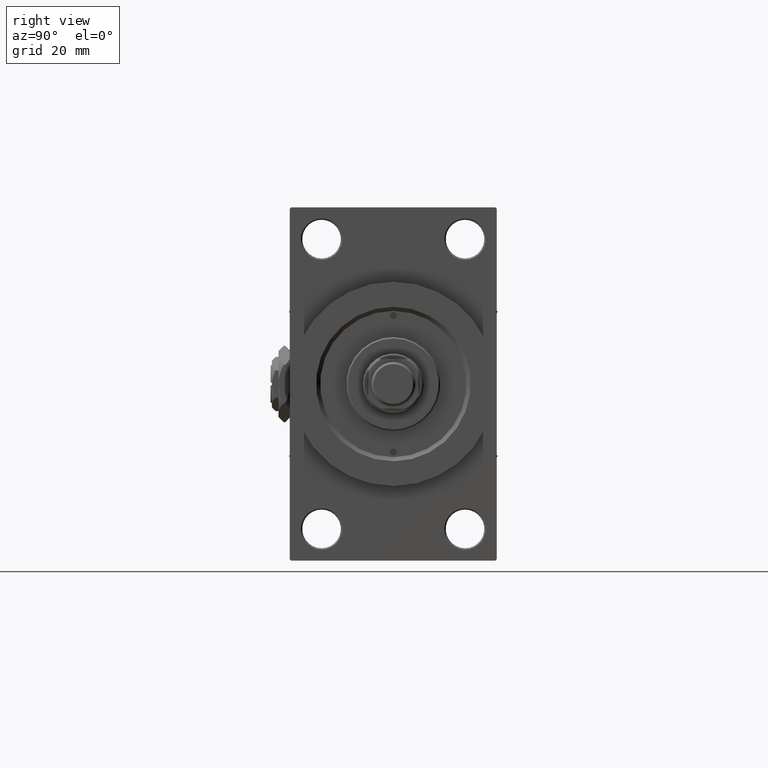
[diagram: clean part render]
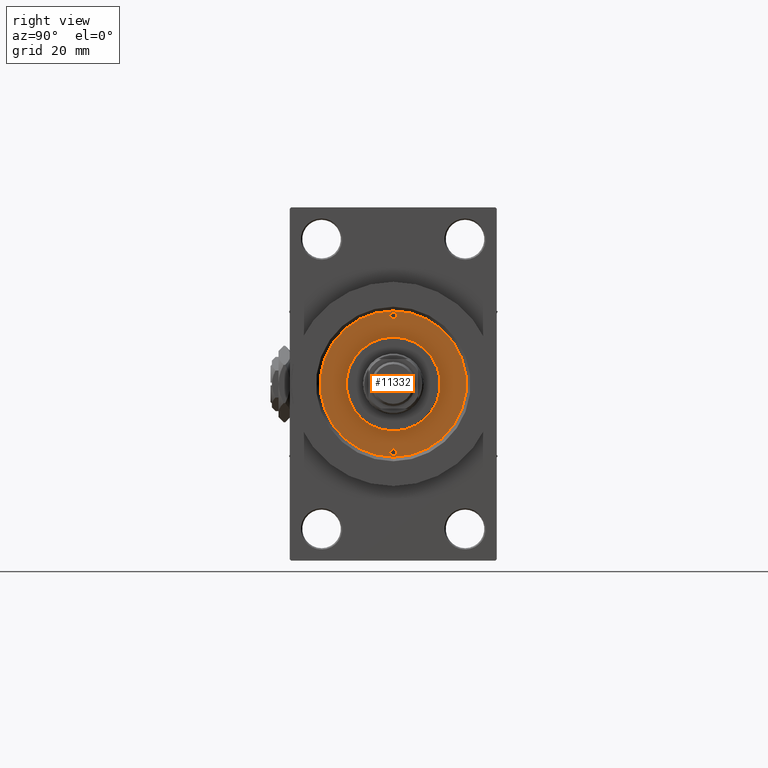
[diagram: same view with one face highlighted and labeled with its STEP entity id]
A machine part, right view. The second image highlights one B-rep face of the part: STEP entity #11332.
In plain terms, the highlighted planar face has unit normal (1, -0, -0).
Its self-contained STEP definition (entity closure, byte-faithful):
#151 = DIRECTION ( 'NONE',  ( 0.000000000000000000, 0.000000000000000000, 1.000000000000000000 ) ) ;
#511 = AXIS2_PLACEMENT_3D ( 'NONE', #33366, #10279, #41410 ) ;
#755 = DIRECTION ( 'NONE',  ( 1.000000000000000000, 0.000000000000000000, 0.000000000000000000 ) ) ;
#1185 = CARTESIAN_POINT ( 'NONE',  ( 24.75000000000000000, 0.000000000000000000, 43.25999999999999801 ) ) ;
#1805 = DIRECTION ( 'NONE',  ( 1.000000000000000000, 0.000000000000000000, 0.000000000000000000 ) ) ;
#2766 = ORIENTED_EDGE ( 'NONE', *, *, #18905, .F. ) ;
#4189 = AXIS2_PLACEMENT_3D ( 'NONE', #1185, #5189, #43558 ) ;
#4529 = VERTEX_POINT ( 'NONE', #7567 ) ;
#5189 = DIRECTION ( 'NONE',  ( -0.000000000000000000, -0.000000000000000000, 1.000000000000000000 ) ) ;
#5830 = ORIENTED_EDGE ( 'NONE', *, *, #45797, .F. ) ;
#5930 = EDGE_LOOP ( 'NONE', ( #6527, #16597 ) ) ;
#6217 = DIRECTION ( 'NONE',  ( 1.000000000000000000, 0.000000000000000000, 0.000000000000000000 ) ) ;
#6281 = ORIENTED_EDGE ( 'NONE', *, *, #8749, .F. ) ;
#6527 = ORIENTED_EDGE ( 'NONE', *, *, #27069, .F. ) ;
#7486 = CIRCLE ( 'NONE', #9853, 1.249999999999997558 ) ;
#7567 = CARTESIAN_POINT ( 'NONE',  ( -23.50000000000000355, 0.000000000000000000, 43.25999999999999801 ) ) ;
#8411 = PLANE ( 'NONE',  #48506 ) ;
#8749 = EDGE_CURVE ( 'NONE', #34991, #49303, #14770, .T. ) ;
#8811 = DIRECTION ( 'NONE',  ( -0.000000000000000000, -0.000000000000000000, 1.000000000000000000 ) ) ;
#9136 = CARTESIAN_POINT ( 'NONE',  ( 0.000000000000000000, 0.000000000000000000, 43.25999999999999801 ) ) ;
#9853 = AXIS2_PLACEMENT_3D ( 'NONE', #46226, #8811, #39426 ) ;
#10279 = DIRECTION ( 'NONE',  ( -0.000000000000000000, -0.000000000000000000, 1.000000000000000000 ) ) ;
#10665 = EDGE_CURVE ( 'NONE', #47299, #31059, #47694, .T. ) ;
#11332 = ADVANCED_FACE ( 'NONE', ( #34748, #41566, #49340, #14954 ), #8411, .T. ) ;
#12140 = CARTESIAN_POINT ( 'NONE',  ( -26.50000000000000355, 0.000000000000000000, 43.25999999999999801 ) ) ;
#12440 = AXIS2_PLACEMENT_3D ( 'NONE', #20635, #35937, #1805 ) ;
#12592 = ORIENTED_EDGE ( 'NONE', *, *, #10665, .T. ) ;
#14320 = CARTESIAN_POINT ( 'NONE',  ( -17.00000000000000000, 0.000000000000000000, 43.25999999999999801 ) ) ;
#14585 = EDGE_CURVE ( 'NONE', #31059, #47299, #35676, .T. ) ;
#14705 = DIRECTION ( 'NONE',  ( 1.000000000000000000, 0.000000000000000000, 0.000000000000000000 ) ) ;
#14770 = CIRCLE ( 'NONE', #17149, 1.249999999999997558 ) ;
#14954 = FACE_OUTER_BOUND ( 'NONE', #23126, .T. ) ;
#14966 = CARTESIAN_POINT ( 'NONE',  ( 0.000000000000000000, 0.000000000000000000, 43.25999999999999801 ) ) ;
#16426 = DIRECTION ( 'NONE',  ( 0.000000000000000000, 0.000000000000000000, 1.000000000000000000 ) ) ;
#16579 = EDGE_CURVE ( 'NONE', #22770, #40186, #36522, .T. ) ;
#16597 = ORIENTED_EDGE ( 'NONE', *, *, #16579, .F. ) ;
#16761 = CARTESIAN_POINT ( 'NONE',  ( 26.00000000000000000, 0.000000000000000000, 43.25999999999999801 ) ) ;
#16916 = CARTESIAN_POINT ( 'NONE',  ( -26.00000000000000000, 1.530808498934188612E-16, 43.25999999999999801 ) ) ;
#17149 = AXIS2_PLACEMENT_3D ( 'NONE', #38638, #19819, #755 ) ;
#18905 = EDGE_CURVE ( 'NONE', #4529, #25005, #30952, .T. ) ;
#19819 = DIRECTION ( 'NONE',  ( -0.000000000000000000, -0.000000000000000000, 1.000000000000000000 ) ) ;
#20332 = CIRCLE ( 'NONE', #48379, 17.00000000000000000 ) ;
#20380 = EDGE_CURVE ( 'NONE', #49303, #34991, #32217, .T. ) ;
#20635 = CARTESIAN_POINT ( 'NONE',  ( 0.000000000000000000, 0.000000000000000000, 43.25999999999999801 ) ) ;
#21629 = CARTESIAN_POINT ( 'NONE',  ( 17.00000000000000000, 2.081899558550500280E-15, 43.25999999999999801 ) ) ;
#22176 = AXIS2_PLACEMENT_3D ( 'NONE', #14966, #151, #14705 ) ;
#22737 = EDGE_LOOP ( 'NONE', ( #2766, #5830 ) ) ;
#22770 = VERTEX_POINT ( 'NONE', #21629 ) ;
#23126 = EDGE_LOOP ( 'NONE', ( #12592, #36218 ) ) ;
#25005 = VERTEX_POINT ( 'NONE', #16916 ) ;
#26199 = DIRECTION ( 'NONE',  ( 0.000000000000000000, 0.000000000000000000, 1.000000000000000000 ) ) ;
#27069 = EDGE_CURVE ( 'NONE', #40186, #22770, #20332, .T. ) ;
#30051 = CARTESIAN_POINT ( 'NONE',  ( 0.000000000000000000, 0.000000000000000000, 43.25999999999999801 ) ) ;
#30952 = CIRCLE ( 'NONE', #511, 1.249999999999997558 ) ;
#31059 = VERTEX_POINT ( 'NONE', #46721 ) ;
#31732 = DIRECTION ( 'NONE',  ( 1.000000000000000000, 0.000000000000000000, -0.000000000000000000 ) ) ;
#32217 = CIRCLE ( 'NONE', #4189, 1.249999999999997558 ) ;
#33366 = CARTESIAN_POINT ( 'NONE',  ( -24.75000000000000000, 0.000000000000000000, 43.25999999999999801 ) ) ;
#33800 = DIRECTION ( 'NONE',  ( 0.000000000000000000, 0.000000000000000000, 1.000000000000000000 ) ) ;
#34748 = FACE_BOUND ( 'NONE', #22737, .T. ) ;
#34991 = VERTEX_POINT ( 'NONE', #42792 ) ;
#35676 = CIRCLE ( 'NONE', #22176, 26.50000000000000355 ) ;
#35751 = AXIS2_PLACEMENT_3D ( 'NONE', #37220, #26199, #45522 ) ;
#35937 = DIRECTION ( 'NONE',  ( 0.000000000000000000, 0.000000000000000000, 1.000000000000000000 ) ) ;
#36218 = ORIENTED_EDGE ( 'NONE', *, *, #14585, .T. ) ;
#36522 = CIRCLE ( 'NONE', #35751, 17.00000000000000000 ) ;
#37220 = CARTESIAN_POINT ( 'NONE',  ( 0.000000000000000000, 0.000000000000000000, 43.25999999999999801 ) ) ;
#38638 = CARTESIAN_POINT ( 'NONE',  ( 24.75000000000000000, 0.000000000000000000, 43.25999999999999801 ) ) ;
#39426 = DIRECTION ( 'NONE',  ( 1.000000000000000000, 0.000000000000000000, 0.000000000000000000 ) ) ;
#40186 = VERTEX_POINT ( 'NONE', #14320 ) ;
#41410 = DIRECTION ( 'NONE',  ( 1.000000000000000000, 0.000000000000000000, 0.000000000000000000 ) ) ;
#41566 = FACE_BOUND ( 'NONE', #43335, .T. ) ;
#42792 = CARTESIAN_POINT ( 'NONE',  ( 23.50000000000000355, 1.530808498934188612E-16, 43.25999999999999801 ) ) ;
#43335 = EDGE_LOOP ( 'NONE', ( #43729, #6281 ) ) ;
#43558 = DIRECTION ( 'NONE',  ( 1.000000000000000000, 0.000000000000000000, 0.000000000000000000 ) ) ;
#43729 = ORIENTED_EDGE ( 'NONE', *, *, #20380, .F. ) ;
#45522 = DIRECTION ( 'NONE',  ( 1.000000000000000000, 0.000000000000000000, 0.000000000000000000 ) ) ;
#45797 = EDGE_CURVE ( 'NONE', #25005, #4529, #7486, .T. ) ;
#46226 = CARTESIAN_POINT ( 'NONE',  ( -24.75000000000000000, 0.000000000000000000, 43.25999999999999801 ) ) ;
#46721 = CARTESIAN_POINT ( 'NONE',  ( 26.50000000000000355, 3.245314017740486554E-15, 43.25999999999999801 ) ) ;
#47299 = VERTEX_POINT ( 'NONE', #12140 ) ;
#47694 = CIRCLE ( 'NONE', #12440, 26.50000000000000355 ) ;
#48379 = AXIS2_PLACEMENT_3D ( 'NONE', #30051, #33800, #6217 ) ;
#48506 = AXIS2_PLACEMENT_3D ( 'NONE', #9136, #16426, #31732 ) ;
#49303 = VERTEX_POINT ( 'NONE', #16761 ) ;
#49340 = FACE_BOUND ( 'NONE', #5930, .T. ) ;